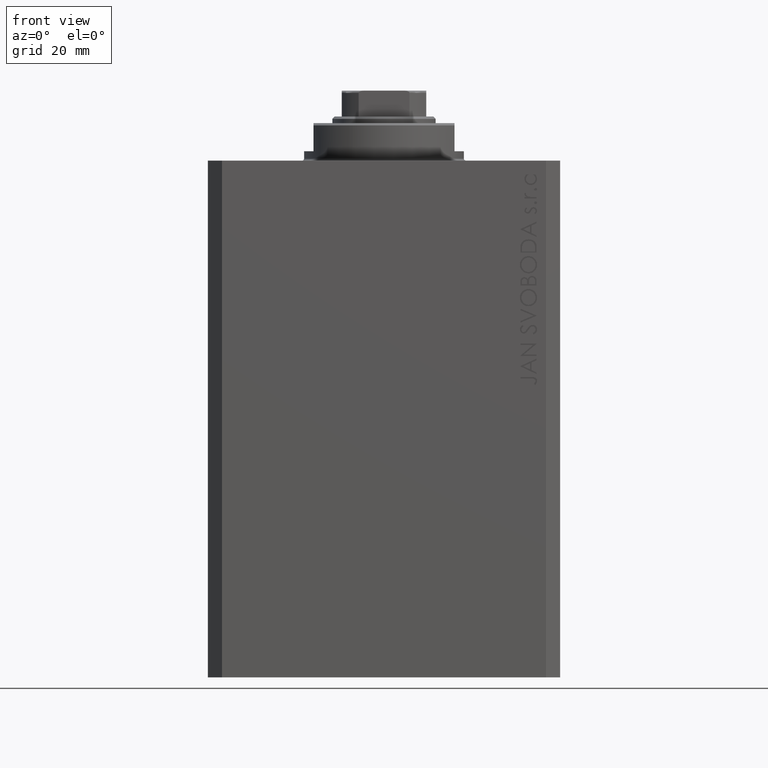
[diagram: clean part render]
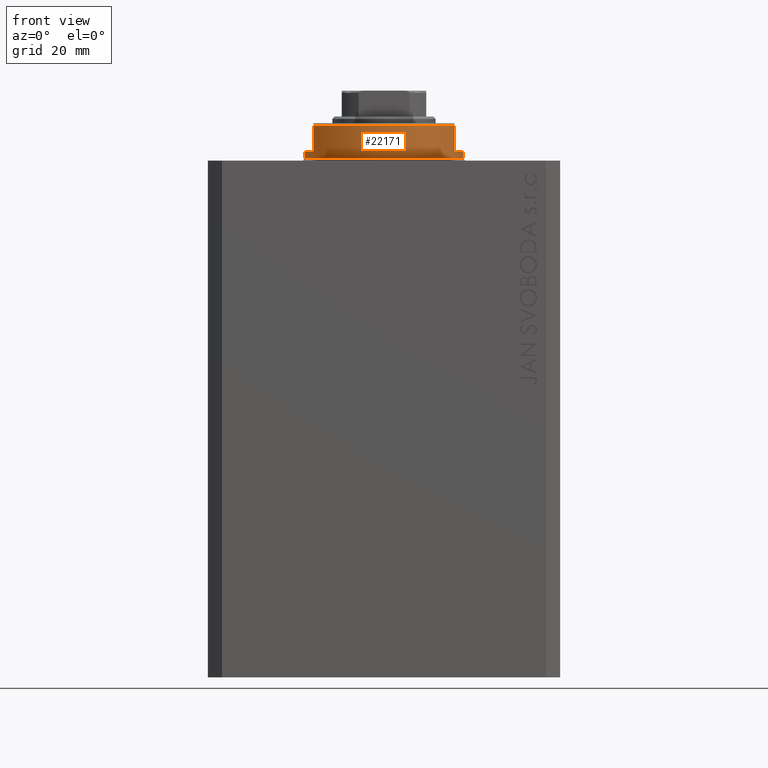
[diagram: same view with one face highlighted and labeled with its STEP entity id]
A machine part, front view. The second image highlights one B-rep face of the part: STEP entity #22171.
In plain terms, the highlighted cylindrical surface (partial cylindrical patch) has radius 17 mm, axis along (0, 0, -1).
Its self-contained STEP definition (entity closure, byte-faithful):
#1842 = CARTESIAN_POINT ( 'NONE',  ( 0.000000000000000000, 0.000000000000000000, -0.5000000000000004441 ) ) ;
#1849 = DIRECTION ( 'NONE',  ( -0.000000000000000000, -0.000000000000000000, 1.000000000000000000 ) ) ;
#2013 = CARTESIAN_POINT ( 'NONE',  ( 15.00000000000000000, -8.000000000000001776, -7.500000000000013323 ) ) ;
#2827 = VECTOR ( 'NONE', #1849, 1000.000000000000000 ) ;
#3334 = EDGE_CURVE ( 'NONE', #30768, #3668, #36103, .T. ) ;
#3668 = VERTEX_POINT ( 'NONE', #9831 ) ;
#3851 = EDGE_CURVE ( 'NONE', #34547, #39750, #14409, .T. ) ;
#4674 = EDGE_CURVE ( 'NONE', #27330, #34547, #44595, .T. ) ;
#4900 = EDGE_CURVE ( 'NONE', #30768, #40397, #12947, .T. ) ;
#5147 = FACE_OUTER_BOUND ( 'NONE', #41394, .T. ) ;
#5276 = AXIS2_PLACEMENT_3D ( 'NONE', #1842, #33392, #8597 ) ;
#5722 = VECTOR ( 'NONE', #6725, 1000.000000000000000 ) ;
#6503 = CARTESIAN_POINT ( 'NONE',  ( -15.00000000000000000, -8.000000000000001776, -8.000000000000000000 ) ) ;
#6725 = DIRECTION ( 'NONE',  ( 0.000000000000000000, 0.000000000000000000, -1.000000000000000000 ) ) ;
#7102 = CARTESIAN_POINT ( 'NONE',  ( 0.000000000000000000, 0.000000000000000000, -7.500000000000013323 ) ) ;
#7662 = EDGE_CURVE ( 'NONE', #27330, #43079, #27303, .T. ) ;
#8034 = ORIENTED_EDGE ( 'NONE', *, *, #3851, .T. ) ;
#8113 = LINE ( 'NONE', #15337, #8242 ) ;
#8242 = VECTOR ( 'NONE', #21896, 1000.000000000000000 ) ;
#8597 = DIRECTION ( 'NONE',  ( 1.000000000000000000, 0.000000000000000000, 0.000000000000000000 ) ) ;
#9272 = CARTESIAN_POINT ( 'NONE',  ( 17.00000000000000000, 0.000000000000000000, -8.000000000000000000 ) ) ;
#9394 = DIRECTION ( 'NONE',  ( -1.000000000000000000, 0.000000000000000000, 0.000000000000000000 ) ) ;
#9831 = CARTESIAN_POINT ( 'NONE',  ( 17.00000000000000000, 0.000000000000000000, -0.5000000000000004441 ) ) ;
#11190 = DIRECTION ( 'NONE',  ( 0.000000000000000000, 0.000000000000000000, 1.000000000000000000 ) ) ;
#11718 = DIRECTION ( 'NONE',  ( 1.000000000000000000, 0.000000000000000000, 0.000000000000000000 ) ) ;
#12149 = DIRECTION ( 'NONE',  ( -0.000000000000000000, -0.000000000000000000, 1.000000000000000000 ) ) ;
#12588 = ORIENTED_EDGE ( 'NONE', *, *, #3334, .T. ) ;
#12947 = CIRCLE ( 'NONE', #32381, 17.00000000000000000 ) ;
#13276 = ORIENTED_EDGE ( 'NONE', *, *, #7662, .F. ) ;
#13401 = CARTESIAN_POINT ( 'NONE',  ( 14.99999999999999645, -8.000000000000003553, -2.000000000000000000 ) ) ;
#13951 = DIRECTION ( 'NONE',  ( -0.000000000000000000, -0.000000000000000000, 1.000000000000000000 ) ) ;
#14409 = CIRCLE ( 'NONE', #42445, 17.00000000000000000 ) ;
#14519 = CARTESIAN_POINT ( 'NONE',  ( -15.00000000000000000, -8.000000000000001776, -7.500000000000014211 ) ) ;
#15337 = CARTESIAN_POINT ( 'NONE',  ( 15.00000000000000000, -8.000000000000001776, -8.000000000000000000 ) ) ;
#15551 = CYLINDRICAL_SURFACE ( 'NONE', #19825, 17.00000000000000000 ) ;
#16634 = EDGE_CURVE ( 'NONE', #3668, #30173, #29788, .T. ) ;
#19332 = DIRECTION ( 'NONE',  ( 0.000000000000000000, 0.000000000000000000, -1.000000000000000000 ) ) ;
#19825 = AXIS2_PLACEMENT_3D ( 'NONE', #29279, #12149, #11718 ) ;
#20208 = DIRECTION ( 'NONE',  ( 0.000000000000000000, 0.000000000000000000, -1.000000000000000000 ) ) ;
#21896 = DIRECTION ( 'NONE',  ( 0.000000000000000000, 0.000000000000000000, -1.000000000000000000 ) ) ;
#22171 = ADVANCED_FACE ( 'NONE', ( #5147 ), #15551, .T. ) ;
#23592 = CARTESIAN_POINT ( 'NONE',  ( 0.000000000000000000, 0.000000000000000000, -2.000000000000000000 ) ) ;
#24002 = CARTESIAN_POINT ( 'NONE',  ( -14.99999999999999645, -8.000000000000003553, -2.000000000000000000 ) ) ;
#24287 = ORIENTED_EDGE ( 'NONE', *, *, #32948, .F. ) ;
#26845 = CARTESIAN_POINT ( 'NONE',  ( -17.00000000000000000, 2.081899558550500280E-15, -0.5000000000000004441 ) ) ;
#27009 = VECTOR ( 'NONE', #13951, 1000.000000000000000 ) ;
#27303 = CIRCLE ( 'NONE', #30914, 17.00000000000000000 ) ;
#27330 = VERTEX_POINT ( 'NONE', #24002 ) ;
#28112 = ORIENTED_EDGE ( 'NONE', *, *, #4674, .T. ) ;
#29279 = CARTESIAN_POINT ( 'NONE',  ( 0.000000000000000000, 0.000000000000000000, -8.000000000000000000 ) ) ;
#29788 = CIRCLE ( 'NONE', #5276, 17.00000000000000000 ) ;
#30173 = VERTEX_POINT ( 'NONE', #26845 ) ;
#30353 = CARTESIAN_POINT ( 'NONE',  ( -17.00000000000000000, 2.081899558550500280E-15, -2.000000000000000000 ) ) ;
#30768 = VERTEX_POINT ( 'NONE', #39052 ) ;
#30914 = AXIS2_PLACEMENT_3D ( 'NONE', #23592, #20208, #33930 ) ;
#31072 = CARTESIAN_POINT ( 'NONE',  ( -17.00000000000000000, 2.081899558550500280E-15, -8.000000000000000000 ) ) ;
#31226 = ORIENTED_EDGE ( 'NONE', *, *, #16634, .T. ) ;
#32381 = AXIS2_PLACEMENT_3D ( 'NONE', #43672, #19332, #9394 ) ;
#32948 = EDGE_CURVE ( 'NONE', #40397, #39750, #8113, .T. ) ;
#33392 = DIRECTION ( 'NONE',  ( -0.000000000000000000, -0.000000000000000000, -1.000000000000000000 ) ) ;
#33930 = DIRECTION ( 'NONE',  ( -1.000000000000000000, 0.000000000000000000, 0.000000000000000000 ) ) ;
#34043 = EDGE_CURVE ( 'NONE', #43079, #30173, #38280, .T. ) ;
#34547 = VERTEX_POINT ( 'NONE', #14519 ) ;
#36103 = LINE ( 'NONE', #9272, #2827 ) ;
#38280 = LINE ( 'NONE', #31072, #27009 ) ;
#39052 = CARTESIAN_POINT ( 'NONE',  ( 17.00000000000000000, 0.000000000000000000, -2.000000000000000000 ) ) ;
#39750 = VERTEX_POINT ( 'NONE', #2013 ) ;
#40397 = VERTEX_POINT ( 'NONE', #13401 ) ;
#40933 = ORIENTED_EDGE ( 'NONE', *, *, #4900, .F. ) ;
#41158 = DIRECTION ( 'NONE',  ( -1.000000000000000000, 0.000000000000000000, 0.000000000000000000 ) ) ;
#41394 = EDGE_LOOP ( 'NONE', ( #41554, #13276, #28112, #8034, #24287, #40933, #12588, #31226 ) ) ;
#41554 = ORIENTED_EDGE ( 'NONE', *, *, #34043, .F. ) ;
#42445 = AXIS2_PLACEMENT_3D ( 'NONE', #7102, #11190, #41158 ) ;
#43079 = VERTEX_POINT ( 'NONE', #30353 ) ;
#43672 = CARTESIAN_POINT ( 'NONE',  ( 0.000000000000000000, 0.000000000000000000, -2.000000000000000000 ) ) ;
#44595 = LINE ( 'NONE', #6503, #5722 ) ;